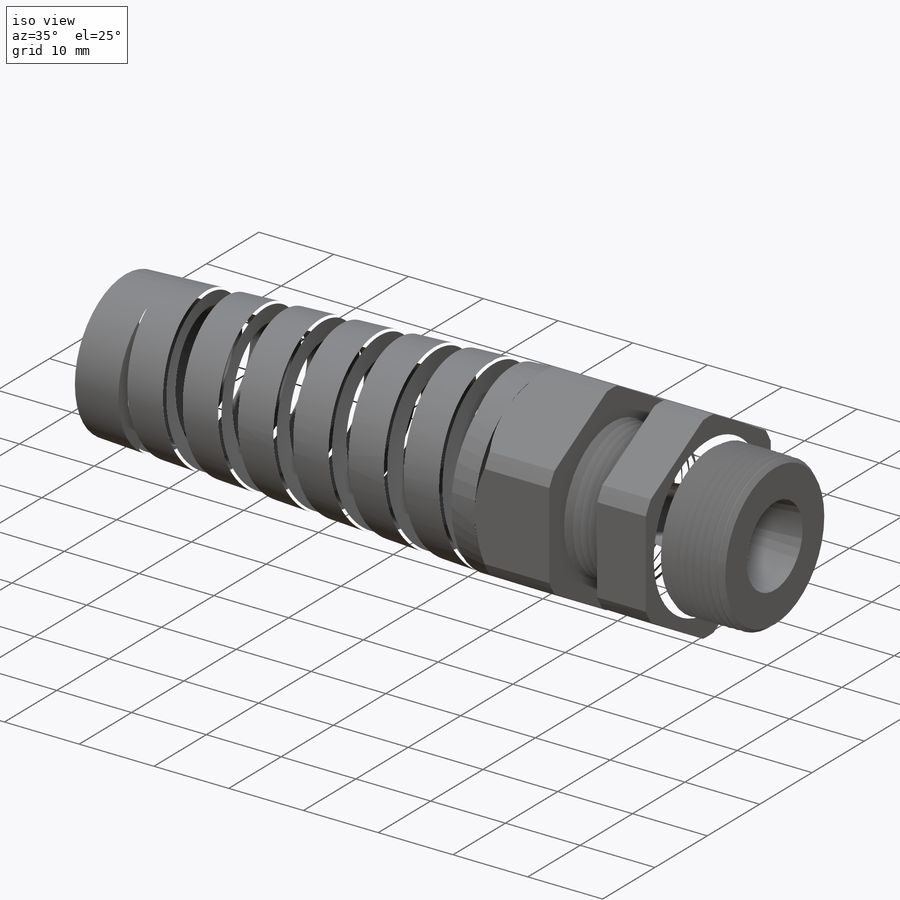
[diagram: iso view]
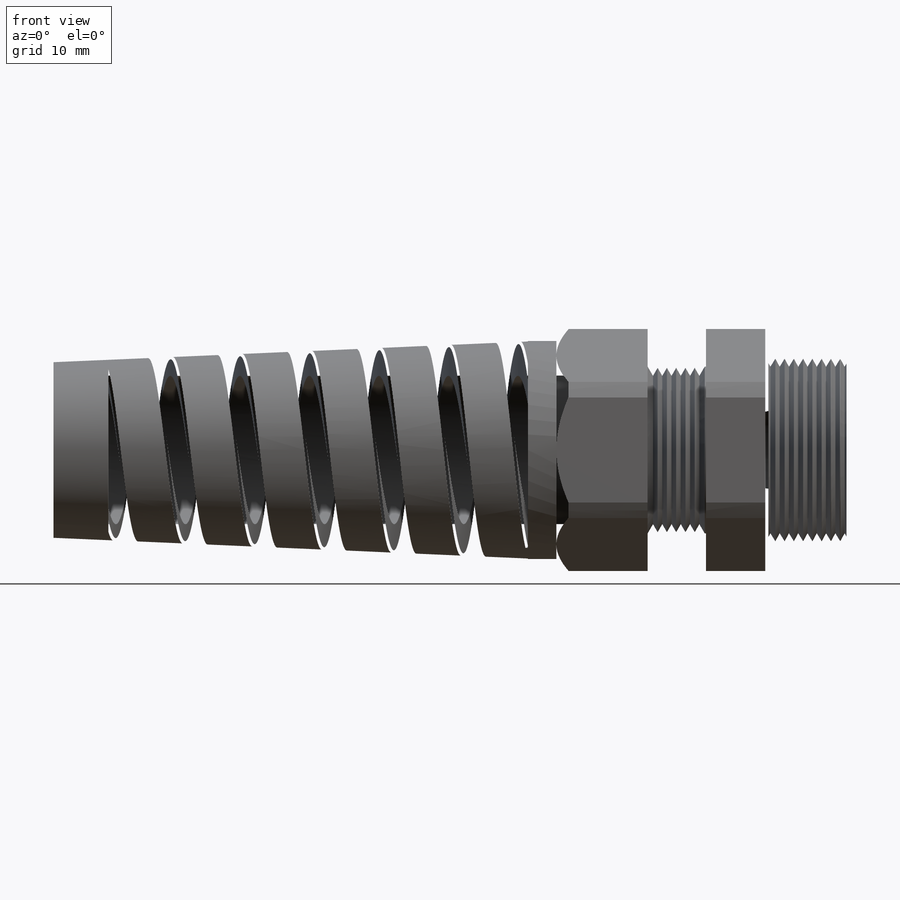
[diagram: front view]
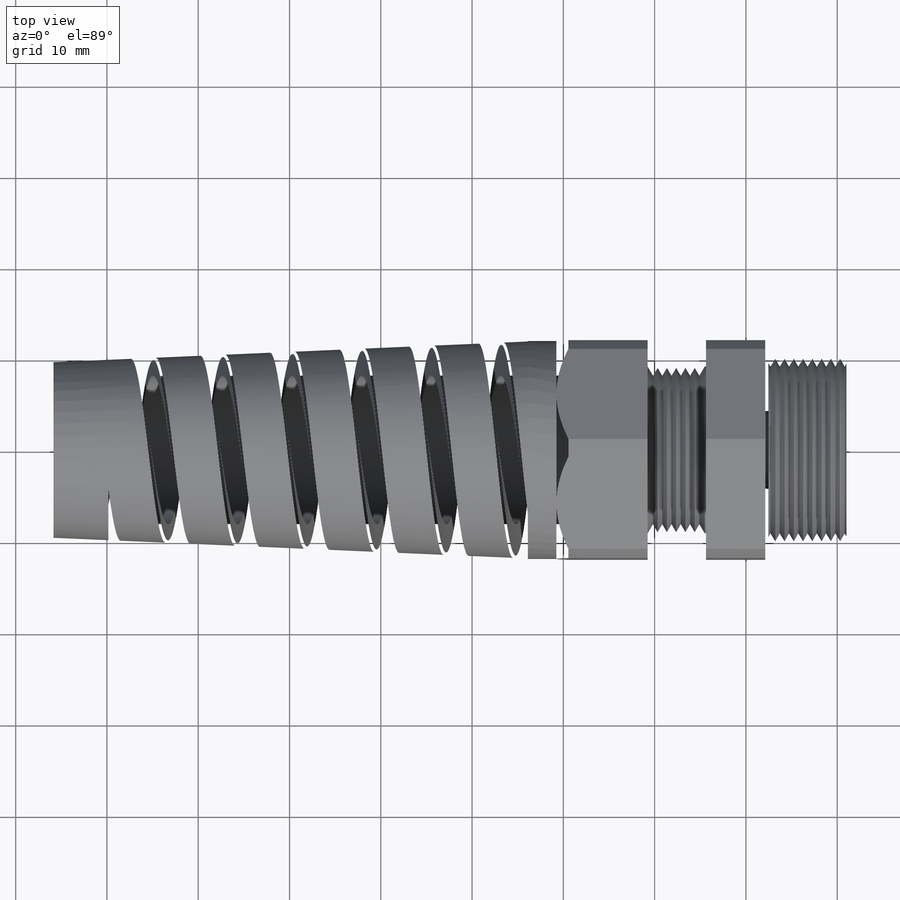
[diagram: top view]
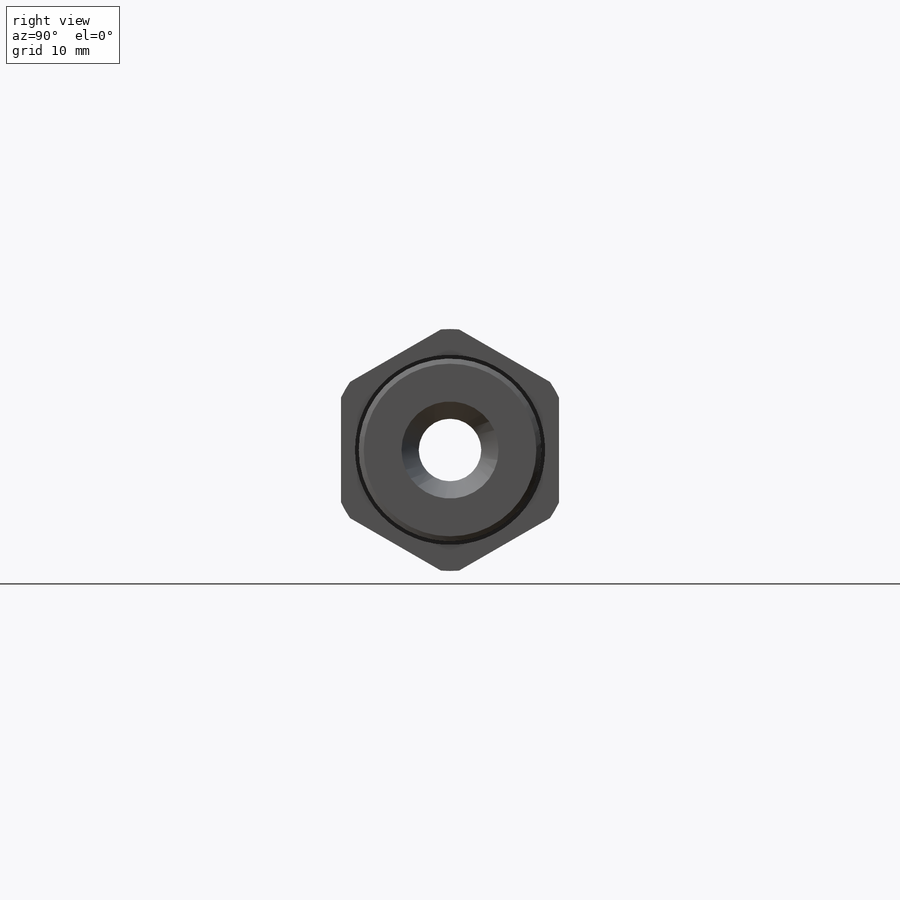
[diagram: right view]
SOLIDWORKS PART (.sldprt)
format: sldprt  version: not decoded by parser v0  size: 1,204,736 bytes
history: native  units: mm
features: sketch x13, revolve x4, cut_revolve x3, cut_extrude x2, pattern_linear x2, fillet x2, extrude x2, material x1, helix x1, sweep x1 (+14 scaffold rows collapsed; 1 parser-record rows omitted)
feature tree (46):
  scaffold x14  (default folders/planes/origin — collapsed)
  material  "Material <not specified>"
  sketch  "Sketch10"  dims[c1.D1=28.956mm c1.D2=6.858mm c1.D3=15.24mm c1.D4=12.8905mm c2.D3=12.8905mm c2.D4=~8.662129mm c3.D4=91.5deg c3.D5=12.8905mm c3.A=7.62mm c4.D5=28.956mm c5.D5=~1.649495deg c5.D4=7.874mm c5.D6=23.876mm c5.D7=15.24mm c5.D8=47.752mm c5.D9=2.0mm c5.D10=10.0mm c5.D11=6.5mm c5.D12=7.874mm c5.D=8.89mm c6.D12=5.2705mm c6.D3=~11.203252mm c7.D3=~91.649495deg c7.D4=5.2705mm c8.D3=~11.203252mm c9.D3=~91.649495deg c10.D3=~7.877264mm c11.D3=~1.649495deg c11.D4=~7.877264mm c12.D3=~19.114643mm c13.D3=1.5deg c13.A=22.606mm c13.D4=33.782mm c13.D5=16.256mm c13.D7=12.874mm c14.D7=7.0deg c14.A=20.32mm c14.D3=~117.795608mm c15.D3=1.5deg c15..9A=18.288mm]
  revolve  "Revolve2"  Angle=360deg
  sketch  "Sketch12"  dims[c1.D2=~26.50236mm c1.D1=23.876mm c2.D2=~0.385494mm c2.D3=~1.335389mm]
  cut_extrude  "Cut-Extrude2"  [1 undecoded]
  sketch  "Sketch13"  dims[c1.D1=54.102mm c1.D3=~66.783056mm c2.D3=2.5deg c2.D4=~2.542703mm c2.D2=6.0mm c2.D1=~71.978012mm c3.D2=27.02mm c4.D2=1.5deg c5.D2=~6.467956mm c5.D4=23.876mm c6.D2=6.0mm]
  sketch  "Sketch21"  dims[D2=0.508mm D1=0.762mm]
  revolve  "Revolve4"  Angle=360deg
  sketch  "Sketch24"  dims[D2=0.254mm D1=0.762mm]
  revolve  "Revolve5"  Angle=360deg
  sketch  "Sketch22"  dims[c1.D1=~1.853873mm c2.D1=90.0deg c3.D1=~3.707745mm c4.D1=60.0deg c4.D2=~1.605501mm c5.D2=60.0deg c5.D3=1.016mm]
  cut_revolve  "Cut-Revolve1"  Angle=360deg
  pattern_linear  "LPattern1"  Count1=6 Count2=1 Spacing1=1.016mm Spacing2=50mm
  sketch  "Sketch23"  dims[c1.D1=~1.692729mm c2.D1=90.0deg c3.D1=~1.60634mm c4.D1=60.0deg c4.D2=~1.493331mm c5.D2=60.0deg c5.D3=1.016mm]
  cut_revolve  "Cut-Revolve2"  Angle=360deg
  pattern_linear  "LPattern2"  Count1=9 Count2=1 Spacing1=1.016mm Spacing2=50mm
  fillet  "Fillet4"  Radius=2mm
  parser-record x1  (decoder bookkeeping rows leaked as tree rows — omitted from the tree; the rows remain in map.json)
  revolve  "Revolve3"  Angle=360deg
  sketch  "Sketch15"  dims[D1=17.526mm]
  helix  "Helix/Spiral1"  Pitch=47.086012mm
  sketch  "Sketch16"  dims[c1.D1=~2.281065mm c2.D1=95.0deg c2.D2=~2.15888mm c2.D3=2.286mm c3.D2=2.794mm c3.D1=2.794mm c4.D1=91.0deg c4.D2=~0.365341mm]
  sweep  "Cut-Sweep1"
  sketch  "Sketch17"  dims[D1=17.526mm]
  extrude  "Extrude1"  Depth=6mm
  fillet  "Fillet2"  Radius=0.254mm
  sketch  "Sketch20"
  extrude  "Extrude2"  [1 undecoded]
  sketch  "Sketch19"
  cut_extrude  "Cut-Extrude3"  Depth=1.999996mm
  sketch  "Sketch25"  dims[D1=1.016mm D2=0.254mm]
  cut_revolve  "Cut-Revolve3"  Angle=360deg
decode coverage: 25 of 30 modeling features carry decoded parameters
note: ~ marks probable driven/reference dimensions
note: 2 parameter values undecoded
note: suppression state not decoded; provenance and decode notes live in map.json
